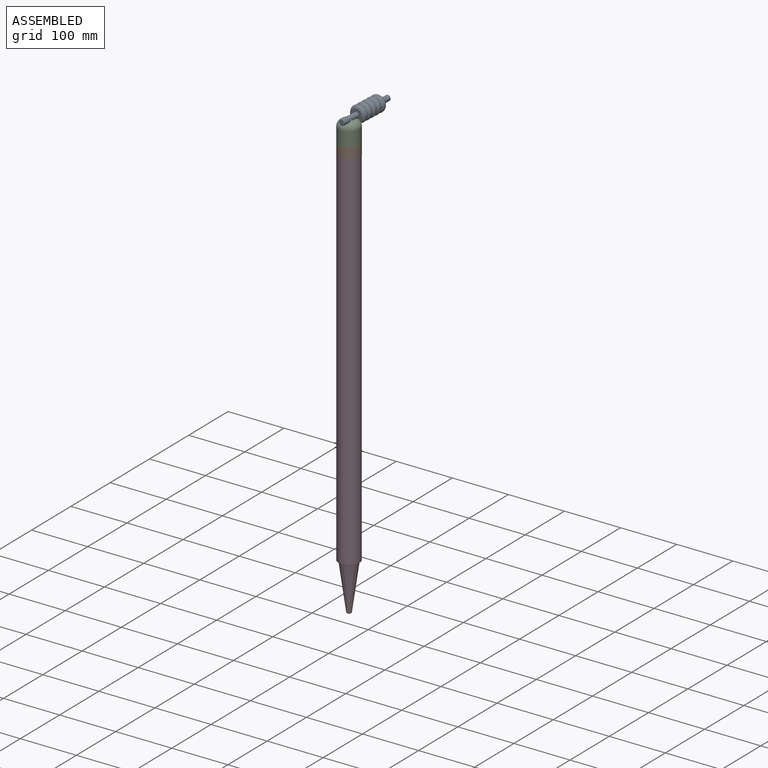
[diagram: assembled view]
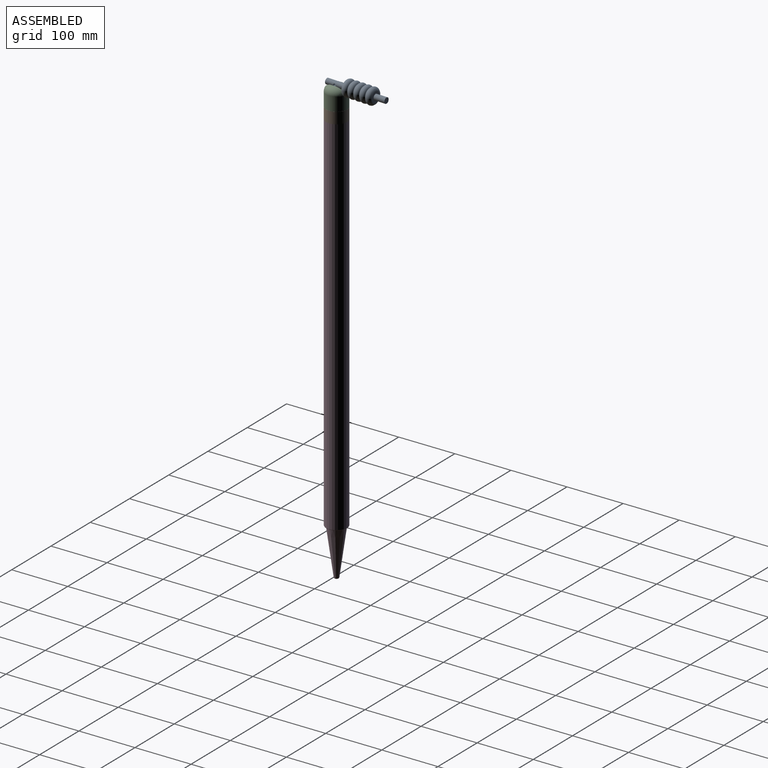
[diagram: assembled view, second angle]
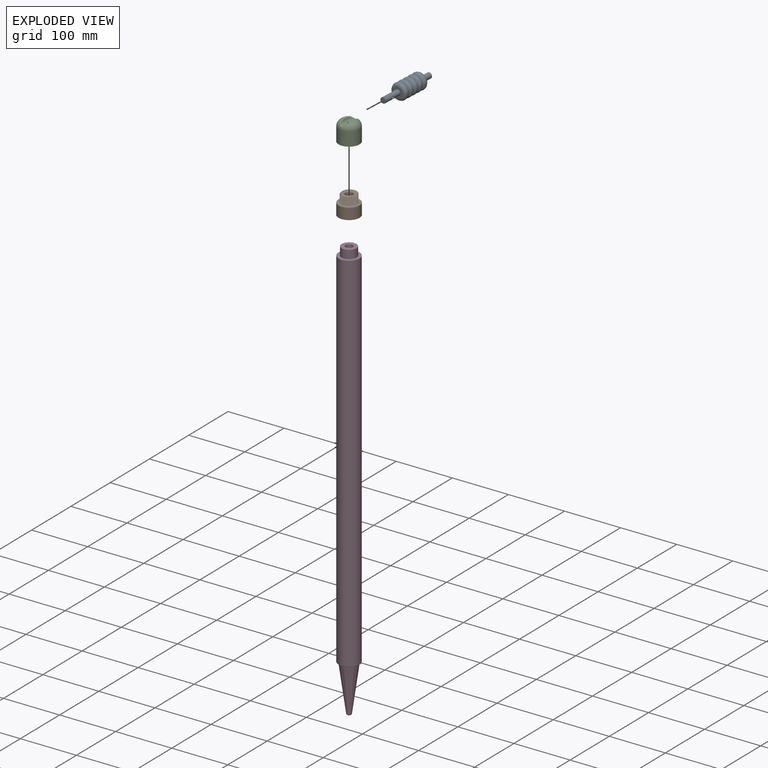
[diagram: exploded view]
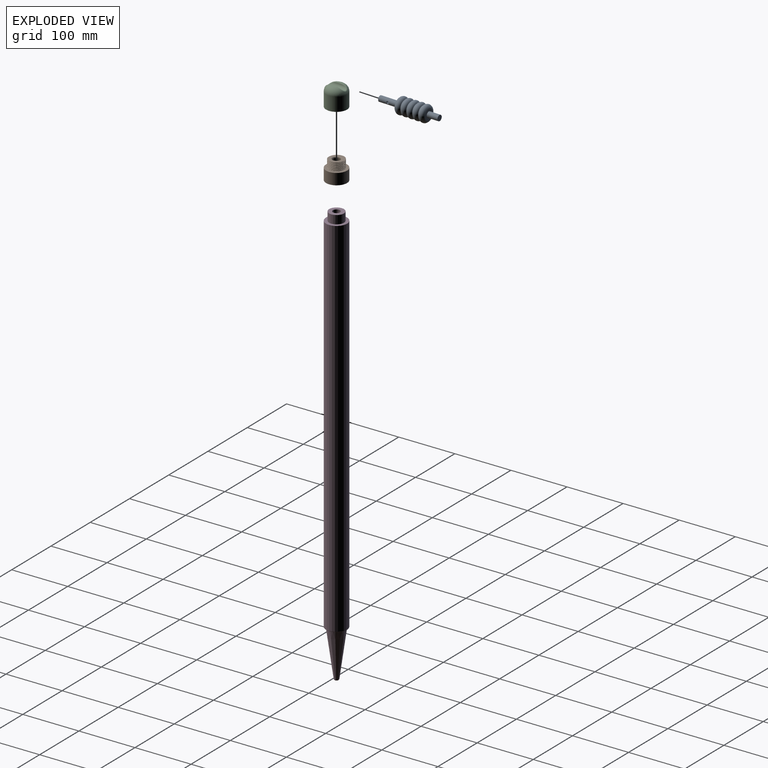
[diagram: exploded view, second angle]
ASSEMBLY  parts=4 mates=4
PART A: 18 faces, bbox 110x31.4x31.4 mm
  f0: cylinder r=5mm len=35mm, axis (-1,0,0), area 1081.4mm2, adj f3,f4,f15,f17
  f1: torus R=11.4mm, axis (-1,0,0), area 80.2mm2, adj f2,f14
  f2: torus R=9mm, axis (-1,0,0), area 1213.5mm2, adj f1,f3
  f3: plane 18x18mm, normal (-1,0,0), area 175.9mm2, adj f0,f2
  f4: plane 10x10mm, normal (-1,0,0), area 78.5mm2, adj f0
  f5: plane 10x10mm, normal (1,0,0), area 78.5mm2, adj f6
  f6: cylinder r=5mm len=20mm, axis (-1,0,0), area 628.3mm2, adj f5,f7
  f7: plane 18x18mm, normal (1,0,0), area 175.9mm2, adj f6,f8
  f8: torus R=9mm, axis (-1,0,0), area 1213.5mm2, adj f7,f9
  f9: torus R=11.4mm, axis (-1,0,0), area 80.2mm2, adj f8,f10
  f10: torus R=9mm, axis (-1,0,0), area 1069.8mm2, adj f9,f11
  f11: torus R=11.4mm, axis (-1,0,0), area 80.2mm2, adj f10,f12
  f12: torus R=9mm, axis (-1,0,0), area 1069.8mm2, adj f11,f13
  f13: torus R=11.4mm, axis (-1,0,0), area 80.2mm2, adj f12,f14
  f14: torus R=9mm, axis (-1,0,0), area 1069.8mm2, adj f1,f13
  f15: cylinder r=2.25mm len=5mm, axis (0,-1,0), area 67mm2, adj f0,f16
  f16: plane 4.5x4.5mm, normal (0,1,0), area 14.1mm2, adj f15,f17
  f17: cylinder r=0.75mm len=5mm, axis (0,1,0), area 23.4mm2, adj f0,f16
PART B: 131 faces, bbox 38.3x38.3x36.3 mm
  f0: plane 37.5x37.5mm, normal (0,0,-1), area 487.9mm2, adj f1,f2,f3,f4,f5,f6,f7,f8
  f1: cylinder r=13.75mm len=15.5mm, axis (0,0,-1), area 29.1mm2, adj f0,f37,f127,f128
  f2: cylinder r=13.75mm len=15.5mm, axis (0,0,-1), area 29.1mm2, adj f0,f37,f124,f125
  f3: cylinder r=13.75mm len=15.5mm, axis (0,0,-1), area 29.1mm2, adj f0,f37,f121,f122
  f4: cylinder r=13.75mm len=15.5mm, axis (0,0,-1), area 29.1mm2, adj f0,f37,f118,f119
  f5: cylinder r=13.75mm len=15.5mm, axis (0,0,-1), area 29.1mm2, adj f0,f37,f115,f116
  f6: cylinder r=13.75mm len=15.5mm, axis (0,0,-1), area 29.1mm2, adj f0,f37,f112,f113
  f7: cylinder r=13.75mm len=15.5mm, axis (0,0,-1), area 29.1mm2, adj f0,f37,f109,f110
  f8: cylinder r=13.75mm len=15.5mm, axis (0,0,-1), area 29.1mm2, adj f0,f37,f106,f107
  f9: cylinder r=13.75mm len=15.5mm, axis (0,0,-1), area 29.1mm2, adj f0,f37,f103,f104
  f10: cylinder r=13.75mm len=15.5mm, axis (0,0,-1), area 29.1mm2, adj f0,f37,f100,f101
  f11: cylinder r=13.75mm len=15.5mm, axis (0,0,-1), area 29.1mm2, adj f0,f37,f97,f98
  f12: cylinder r=13.75mm len=15.5mm, axis (0,0,-1), area 29.1mm2, adj f0,f37,f94,f95
  f13: cylinder r=13.75mm len=15.5mm, axis (0,0,-1), area 29.1mm2, adj f0,f37,f91,f92
  f14: cylinder r=13.75mm len=15.5mm, axis (0,0,-1), area 29.1mm2, adj f0,f37,f88,f89
  f15: cylinder r=13.75mm len=15.5mm, axis (0,0,-1), area 29.1mm2, adj f0,f37,f85,f86
  f16: cylinder r=13.75mm len=15.5mm, axis (0,0,-1), area 29.1mm2, adj f0,f37,f82,f83
  f17: cylinder r=13.75mm len=15.5mm, axis (0,0,-1), area 29.1mm2, adj f0,f37,f79,f80
  f18: cylinder r=13.75mm len=15.5mm, axis (0,0,-1), area 29.1mm2, adj f0,f37,f76,f77
  f19: cylinder r=13.75mm len=15.5mm, axis (0,0,-1), area 29.1mm2, adj f0,f37,f73,f74
  f20: cylinder r=13.75mm len=15.5mm, axis (0,0,-1), area 29.1mm2, adj f0,f37,f70,f71
  f21: cylinder r=13.75mm len=15.5mm, axis (0,0,-1), area 29.1mm2, adj f0,f37,f67,f68
  f22: cylinder r=13.75mm len=15.5mm, axis (0,0,-1), area 29.1mm2, adj f0,f37,f64,f65
  f23: cylinder r=13.75mm len=15.5mm, axis (0,0,-1), area 29.1mm2, adj f0,f37,f61,f62
  f24: cylinder r=13.75mm len=15.5mm, axis (0,0,-1), area 29.1mm2, adj f0,f37,f58,f59
  f25: cylinder r=13.75mm len=15.5mm, axis (0,0,-1), area 29.1mm2, adj f0,f37,f55,f56
  f26: cylinder r=13.75mm len=15.5mm, axis (0,0,-1), area 29.1mm2, adj f0,f37,f52,f53
  f27: cylinder r=13.75mm len=15.5mm, axis (0,0,-1), area 29.1mm2, adj f0,f37,f49,f50
  f28: cylinder r=13.75mm len=15.5mm, axis (0,0,-1), area 29.1mm2, adj f0,f37,f46,f47
  f29: cylinder r=13.75mm len=15.5mm, axis (0,0,-1), area 29.1mm2, adj f0,f37,f41,f44
  f30: bspline ~32.04x27.75mm, area 839.3mm2, adj f32,f35,f38,f39
  f31: bspline ~32.04x27.75mm, area 833mm2, adj f32,f35,f38,f39
  f32: cylinder r=13.88mm len=27.75mm, axis (0,0,-1), area 252.6mm2, adj f30,f31,f35,f39
  f33: cylinder r=18.75mm len=37.5mm, axis (0,0,-1), area 2356.2mm2, adj f0,f35
  f34: cylinder r=6.5mm len=17mm, axis (0,0,-1), area 694.3mm2, adj f37,f40
  f35: plane 38.25x38.25mm, normal (0,0,1), area 548.1mm2, adj f30,f31,f32,f33,f38
  f36: cylinder r=13.75mm len=15.5mm, axis (0,0,-1), area 29.1mm2, adj f0,f37,f43,f130
  f37: plane 29x28.95mm, normal (0,0,-1), area 483.8mm2, adj f1,f2,f3,f4,f5,f6,f7,f8
  f38: cylinder r=12.68mm len=25.35mm, axis (0,0,-1), area 44.2mm2, adj f30,f31,f35,f39
  f39: plane 27.47x27.37mm, normal (0,0,1), area 329.4mm2, adj f30,f31,f32,f38,f40
  f40: torus R=8.5mm, axis (0,0,1), area 142.7mm2, adj f34,f39
  f41: plane 15.5x0.76mm, normal (0,1,0), area 11.8mm2, adj f0,f29,f37,f42
  f42: plane 15.5x1mm, normal (-1,0,0), area 15.5mm2, adj f0,f37,f41,f43
  f43: plane 15.5x0.76mm, normal (0,-1,0), area 11.8mm2, adj f0,f36,f37,f42
  f44: plane 15.5x0.74mm, normal (-0.21,-0.98,0), area 11.8mm2, adj f0,f29,f37,f45
  f45: plane 15.5x0.98mm, normal (-0.98,0.21,0), area 15.5mm2, adj f0,f37,f44,f46
  f46: plane 15.5x0.74mm, normal (0.21,0.98,0), area 11.8mm2, adj f0,f28,f37,f45
  f47: plane 15.5x0.69mm, normal (-0.41,-0.91,0), area 11.8mm2, adj f0,f28,f37,f48
  f48: plane 15.5x0.91mm, normal (-0.91,0.41,0), area 15.5mm2, adj f0,f37,f47,f49
  f49: plane 15.5x0.69mm, normal (0.41,0.91,0), area 11.8mm2, adj f0,f27,f37,f48
  f50: plane 15.5x0.61mm, normal (-0.59,-0.81,0), area 11.8mm2, adj f0,f27,f37,f51
  f51: plane 15.5x0.81mm, normal (-0.81,0.59,0), area 15.5mm2, adj f0,f37,f50,f52
  f52: plane 15.5x0.61mm, normal (0.59,0.81,0), area 11.8mm2, adj f0,f26,f37,f51
  f53: plane 15.5x0.56mm, normal (-0.74,-0.67,0), area 11.8mm2, adj f0,f26,f37,f54
  f54: plane 15.5x0.74mm, normal (-0.67,0.74,0), area 15.5mm2, adj f0,f37,f53,f55
  f55: plane 15.5x0.56mm, normal (0.74,0.67,0), area 11.8mm2, adj f0,f25,f37,f54
  f56: plane 15.5x0.66mm, normal (-0.87,-0.5,0), area 11.8mm2, adj f0,f25,f37,f57
  f57: plane 15.5x0.87mm, normal (-0.5,0.87,0), area 15.5mm2, adj f0,f37,f56,f58
  f58: plane 15.5x0.66mm, normal (0.87,0.5,0), area 11.8mm2, adj f0,f24,f37,f57
  f59: plane 15.5x0.72mm, normal (-0.95,-0.31,0), area 11.8mm2, adj f0,f24,f37,f60
  f60: plane 15.5x0.95mm, normal (-0.31,0.95,0), area 15.5mm2, adj f0,f37,f59,f61
  f61: plane 15.5x0.72mm, normal (0.95,0.31,0), area 11.8mm2, adj f0,f23,f37,f60
  f62: plane 15.5x0.76mm, normal (-0.99,-0.1,0), area 11.8mm2, adj f0,f23,f37,f63
  f63: plane 15.5x0.99mm, normal (-0.1,0.99,0), area 15.5mm2, adj f0,f37,f62,f64
  f64: plane 15.5x0.76mm, normal (0.99,0.1,0), area 11.8mm2, adj f0,f22,f37,f63
  f65: plane 15.5x0.76mm, normal (-0.99,0.1,0), area 11.8mm2, adj f0,f22,f37,f66
  f66: plane 15.5x0.99mm, normal (0.1,0.99,0), area 15.5mm2, adj f0,f37,f65,f67
  f67: plane 15.5x0.76mm, normal (0.99,-0.1,0), area 11.8mm2, adj f0,f21,f37,f66
  f68: plane 15.5x0.72mm, normal (-0.95,0.31,0), area 11.8mm2, adj f0,f21,f37,f69
  f69: plane 15.5x0.95mm, normal (0.31,0.95,0), area 15.5mm2, adj f0,f37,f68,f70
  f70: plane 15.5x0.72mm, normal (0.95,-0.31,0), area 11.8mm2, adj f0,f20,f37,f69
  f71: plane 15.5x0.66mm, normal (-0.87,0.5,0), area 11.8mm2, adj f0,f20,f37,f72
  f72: plane 15.5x0.87mm, normal (0.5,0.87,0), area 15.5mm2, adj f0,f37,f71,f73
  f73: plane 15.5x0.66mm, normal (0.87,-0.5,0), area 11.8mm2, adj f0,f19,f37,f72
  f74: plane 15.5x0.56mm, normal (-0.74,0.67,0), area 11.8mm2, adj f0,f19,f37,f75
  f75: plane 15.5x0.74mm, normal (0.67,0.74,0), area 15.5mm2, adj f0,f37,f74,f76
  f76: plane 15.5x0.56mm, normal (0.74,-0.67,0), area 11.8mm2, adj f0,f18,f37,f75
  f77: plane 15.5x0.61mm, normal (-0.59,0.81,0), area 11.8mm2, adj f0,f18,f37,f78
  f78: plane 15.5x0.81mm, normal (0.81,0.59,0), area 15.5mm2, adj f0,f37,f77,f79
  f79: plane 15.5x0.61mm, normal (0.59,-0.81,0), area 11.8mm2, adj f0,f17,f37,f78
  f80: plane 15.5x0.69mm, normal (-0.41,0.91,0), area 11.8mm2, adj f0,f17,f37,f81
  f81: plane 15.5x0.91mm, normal (0.91,0.41,0), area 15.5mm2, adj f0,f37,f80,f82
  f82: plane 15.5x0.69mm, normal (0.41,-0.91,0), area 11.8mm2, adj f0,f16,f37,f81
  f83: plane 15.5x0.74mm, normal (-0.21,0.98,0), area 11.8mm2, adj f0,f16,f37,f84
  f84: plane 15.5x0.98mm, normal (0.98,0.21,0), area 15.5mm2, adj f0,f37,f83,f85
  f85: plane 15.5x0.74mm, normal (0.21,-0.98,0), area 11.8mm2, adj f0,f15,f37,f84
  f86: plane 15.5x0.76mm, normal (0,1,0), area 11.8mm2, adj f0,f15,f37,f87
  f87: plane 15.5x1mm, normal (1,0,0), area 15.5mm2, adj f0,f37,f86,f88
  f88: plane 15.5x0.76mm, normal (0,-1,0), area 11.8mm2, adj f0,f14,f37,f87
  f89: plane 15.5x0.74mm, normal (0.21,0.98,0), area 11.8mm2, adj f0,f14,f37,f90
  f90: plane 15.5x0.98mm, normal (0.98,-0.21,0), area 15.5mm2, adj f0,f37,f89,f91
  f91: plane 15.5x0.74mm, normal (-0.21,-0.98,0), area 11.8mm2, adj f0,f13,f37,f90
  f92: plane 15.5x0.69mm, normal (0.41,0.91,0), area 11.8mm2, adj f0,f13,f37,f93
  f93: plane 15.5x0.91mm, normal (0.91,-0.41,0), area 15.5mm2, adj f0,f37,f92,f94
  f94: plane 15.5x0.69mm, normal (-0.41,-0.91,0), area 11.8mm2, adj f0,f12,f37,f93
  f95: plane 15.5x0.61mm, normal (0.59,0.81,0), area 11.8mm2, adj f0,f12,f37,f96
  f96: plane 15.5x0.81mm, normal (0.81,-0.59,0), area 15.5mm2, adj f0,f37,f95,f97
  f97: plane 15.5x0.61mm, normal (-0.59,-0.81,0), area 11.8mm2, adj f0,f11,f37,f96
  f98: plane 15.5x0.56mm, normal (0.74,0.67,0), area 11.8mm2, adj f0,f11,f37,f99
  f99: plane 15.5x0.74mm, normal (0.67,-0.74,0), area 15.5mm2, adj f0,f37,f98,f100
  f100: plane 15.5x0.56mm, normal (-0.74,-0.67,0), area 11.8mm2, adj f0,f10,f37,f99
  f101: plane 15.5x0.66mm, normal (0.87,0.5,0), area 11.8mm2, adj f0,f10,f37,f102
  f102: plane 15.5x0.87mm, normal (0.5,-0.87,0), area 15.5mm2, adj f0,f37,f101,f103
  f103: plane 15.5x0.66mm, normal (-0.87,-0.5,0), area 11.8mm2, adj f0,f9,f37,f102
  f104: plane 15.5x0.72mm, normal (0.95,0.31,0), area 11.8mm2, adj f0,f9,f37,f105
  f105: plane 15.5x0.95mm, normal (0.31,-0.95,0), area 15.5mm2, adj f0,f37,f104,f106
  f106: plane 15.5x0.72mm, normal (-0.95,-0.31,0), area 11.8mm2, adj f0,f8,f37,f105
  f107: plane 15.5x0.76mm, normal (0.99,0.1,0), area 11.8mm2, adj f0,f8,f37,f108
  f108: plane 15.5x0.99mm, normal (0.1,-0.99,0), area 15.5mm2, adj f0,f37,f107,f109
  f109: plane 15.5x0.76mm, normal (-0.99,-0.1,0), area 11.8mm2, adj f0,f7,f37,f108
  f110: plane 15.5x0.76mm, normal (0.99,-0.1,0), area 11.8mm2, adj f0,f7,f37,f111
  f111: plane 15.5x0.99mm, normal (-0.1,-0.99,0), area 15.5mm2, adj f0,f37,f110,f112
  f112: plane 15.5x0.76mm, normal (-0.99,0.1,0), area 11.8mm2, adj f0,f6,f37,f111
  f113: plane 15.5x0.72mm, normal (0.95,-0.31,0), area 11.8mm2, adj f0,f6,f37,f114
  f114: plane 15.5x0.95mm, normal (-0.31,-0.95,0), area 15.5mm2, adj f0,f37,f113,f115
  f115: plane 15.5x0.72mm, normal (-0.95,0.31,0), area 11.8mm2, adj f0,f5,f37,f114
  f116: plane 15.5x0.66mm, normal (0.87,-0.5,0), area 11.8mm2, adj f0,f5,f37,f117
  f117: plane 15.5x0.87mm, normal (-0.5,-0.87,0), area 15.5mm2, adj f0,f37,f116,f118
  f118: plane 15.5x0.66mm, normal (-0.87,0.5,0), area 11.8mm2, adj f0,f4,f37,f117
  f119: plane 15.5x0.56mm, normal (0.74,-0.67,0), area 11.8mm2, adj f0,f4,f37,f120
  f120: plane 15.5x0.74mm, normal (-0.67,-0.74,0), area 15.5mm2, adj f0,f37,f119,f121
  f121: plane 15.5x0.56mm, normal (-0.74,0.67,0), area 11.8mm2, adj f0,f3,f37,f120
  f122: plane 15.5x0.61mm, normal (0.59,-0.81,0), area 11.8mm2, adj f0,f3,f37,f123
  f123: plane 15.5x0.81mm, normal (-0.81,-0.59,0), area 15.5mm2, adj f0,f37,f122,f124
  f124: plane 15.5x0.61mm, normal (-0.59,0.81,0), area 11.8mm2, adj f0,f2,f37,f123
  f125: plane 15.5x0.69mm, normal (0.41,-0.91,0), area 11.8mm2, adj f0,f2,f37,f126
  f126: plane 15.5x0.91mm, normal (-0.91,-0.41,0), area 15.5mm2, adj f0,f37,f125,f127
  f127: plane 15.5x0.69mm, normal (-0.41,0.91,0), area 11.8mm2, adj f0,f1,f37,f126
  f128: plane 15.5x0.74mm, normal (0.21,-0.98,0), area 11.8mm2, adj f0,f1,f37,f129
  f129: plane 15.5x0.98mm, normal (-0.98,-0.21,0), area 15.5mm2, adj f0,f37,f128,f130
  f130: plane 15.5x0.74mm, normal (-0.21,0.98,0), area 11.8mm2, adj f0,f36,f37,f129
PART C: 16 faces, bbox 38.2x38.2x37.5 mm
  f0: plane 28.09x28.07mm, normal (0,0,-1), area 383mm2, adj f1,f11,f12,f13,f14
  f1: cylinder r=14.12mm len=28.25mm, axis (0,0,-1), area 477.7mm2, adj f0,f3,f12,f13
  f2: cylinder r=18.75mm len=37.5mm, axis (0,0,-1), area 2886.3mm2, adj f3,f4
  f3: plane 38.22x38.22mm, normal (0,0,-1), area 520.4mm2, adj f1,f2,f11,f12,f13
  f4: torus R=7.25mm, axis (0,0,1), area 1272mm2, adj f2,f9
  f5: cylinder r=6mm len=32.88mm, axis (0,-1,0), area 416.7mm2, adj f9,f10
  f6: cylinder r=6mm len=12mm, axis (0,0,-1), area 113.1mm2, adj f7,f14
  f7: sphere r=6mm, area 195.9mm2, adj f6,f15
  f8: cylinder r=2mm len=4mm, axis (0,0,1), area 29mm2, adj f10,f15
  f9: bspline ~35.53x15.11mm, area 183.5mm2, adj f4,f5
  f10: bspline ~7.01x5.61mm, area 30.4mm2, adj f5,f8
  f11: cylinder r=12.97mm len=25.95mm, axis (0,0,1), area 243mm2, adj f0,f3,f12,f13
  f12: bspline ~32.62x28.25mm, area 844.3mm2, adj f0,f1,f3,f11
  f13: bspline ~32.62x28.25mm, area 852.3mm2, adj f0,f1,f3,f11
  f14: torus R=8mm, axis (0,0,1), area 132.8mm2, adj f0,f6
  f15: torus R=4mm, axis (0,0,-1), area 30.9mm2, adj f7,f8
PART D: 11 faces, bbox 40.6x40.6x755 mm
  f0: cylinder r=6.5mm len=121mm, axis (0,0,1), area 4941.7mm2, adj f1,f10
  f1: plane 26.5x26.5mm, normal (0,0,1), area 418.8mm2, adj f0,f2
  f2: cylinder r=13.25mm len=26.5mm, axis (0,0,1), area 1248.8mm2, adj f1,f3
  f3: plane 37.5x37.5mm, normal (0,0,1), area 552.9mm2, adj f2,f4
  f4: cylinder r=18.75mm len=654mm, axis (0,0,1), area 77047.6mm2, adj f3,f5
  f5: torus R=17.75mm, axis (0,0,1), area 181.5mm2, adj f4,f6
  f6: plane 35.5x35.5mm, normal (0,0,-1), area 210.5mm2, adj f5,f7
  f7: cone r=15.75mm half-angle=7.9deg, axis (0,0,1), area 5279mm2, adj f6,f8
  f8: torus R=2.26mm, axis (0,0,1), area 62.4mm2, adj f7,f9
  f9: plane 4.52x4.52mm, normal (0,0,-1), area 16mm2, adj f8
  f10: plane 13x13mm, normal (0,0,1), area 132.7mm2, adj f0
PLACE A rot(axis=(0.72,0.69,0),180deg) t=(-134.51,114.31,151.56)mm
PLACE B rot(axis=(0,0,-1),90deg) t=(-139.23,21.93,95.48)mm
PLACE C rot(axis=(0,0,-1),2.9deg) t=(-139.23,21.93,115.56)mm
PLACE D t=(-139.23,21.93,-644.52)mm fixed
MATE cylindrical A.f0 <-> C.f5  axis (-0.05,-1,0) through (-139.23,21.93,151.56)mm
MATE cylindrical B.f33 <-> C.f2  axis (0,0,-1) through (-139.23,21.93,105.48)mm
MATE cylindrical D.f0 <-> B.f1  axis (0,0,1) through (-139.23,21.93,102.98)mm
MATE planar B.f32 <-> D.f0  axis (0,0,-1) through (-139.23,21.93,95.48)mm
